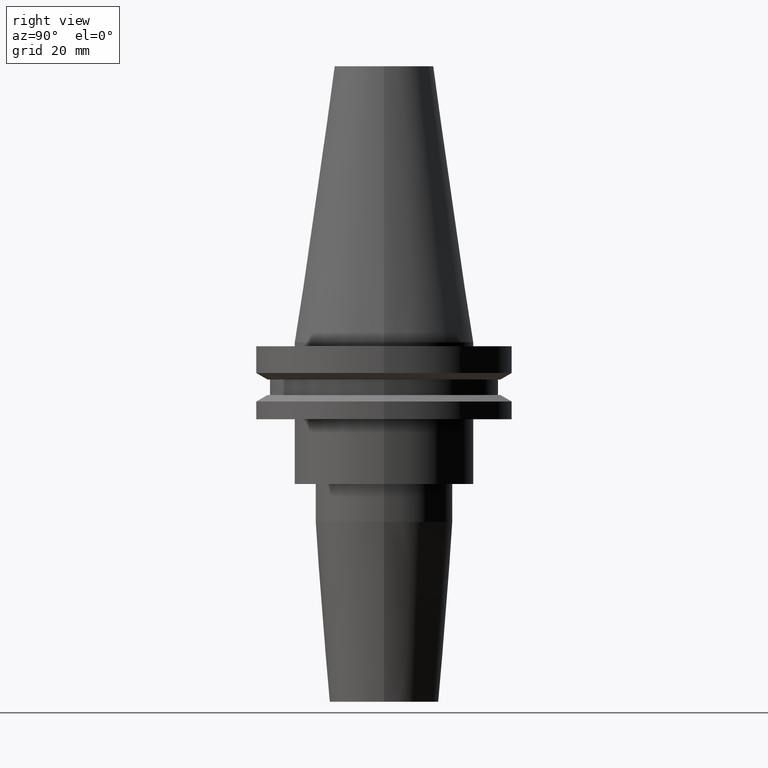
[diagram: clean part render]
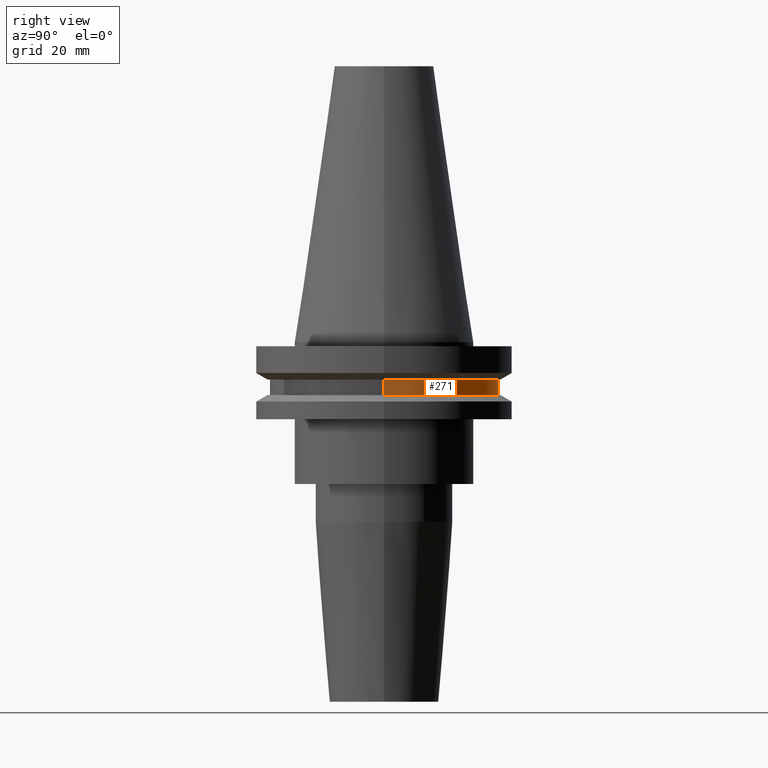
[diagram: same view with one face highlighted and labeled with its STEP entity id]
A machine part, right view. The second image highlights one B-rep face of the part: STEP entity #271.
In plain terms, the highlighted cylindrical surface (partial cylindrical patch) has radius 28.18 mm, axis along (-0, -0, 1).
Its self-contained STEP definition (entity closure, byte-faithful):
#3 = DIRECTION ( 'NONE',  ( -0.000000000000000000, -0.000000000000000000, 1.000000000000000000 ) ) ;
#50 = EDGE_CURVE ( 'NONE', #238, #223, #490, .T. ) ;
#81 = EDGE_CURVE ( 'NONE', #241, #223, #338, .T. ) ;
#115 = CARTESIAN_POINT ( 'NONE',  ( -28.17999999999999972, 3.451054679997241634E-15, -13.05499999999999794 ) ) ;
#127 = CARTESIAN_POINT ( 'NONE',  ( -28.17999999999999972, 3.451054679997241634E-15, -9.204999999999991189 ) ) ;
#137 = DIRECTION ( 'NONE',  ( 1.000000000000000000, 0.000000000000000000, 0.000000000000000000 ) ) ;
#146 = ORIENTED_EDGE ( 'NONE', *, *, #474, .F. ) ;
#156 = DIRECTION ( 'NONE',  ( -0.000000000000000000, -0.000000000000000000, 1.000000000000000000 ) ) ;
#157 = ORIENTED_EDGE ( 'NONE', *, *, #81, .F. ) ;
#167 = DIRECTION ( 'NONE',  ( -0.000000000000000000, -0.000000000000000000, 1.000000000000000000 ) ) ;
#216 = CYLINDRICAL_SURFACE ( 'NONE', #246, 28.17999999999999972 ) ;
#220 = DIRECTION ( 'NONE',  ( -0.000000000000000000, -0.000000000000000000, 1.000000000000000000 ) ) ;
#223 = VERTEX_POINT ( 'NONE', #127 ) ;
#229 = VECTOR ( 'NONE', #220, 1000.000000000000000 ) ;
#235 = DIRECTION ( 'NONE',  ( 1.000000000000000000, 0.000000000000000000, 0.000000000000000000 ) ) ;
#238 = VERTEX_POINT ( 'NONE', #115 ) ;
#241 = VERTEX_POINT ( 'NONE', #384 ) ;
#246 = AXIS2_PLACEMENT_3D ( 'NONE', #530, #536, #470 ) ;
#267 = CARTESIAN_POINT ( 'NONE',  ( 28.17999999999999972, 0.000000000000000000, -13.05499999999999794 ) ) ;
#271 = ADVANCED_FACE ( 'NONE', ( #408 ), #216, .T. ) ;
#283 = AXIS2_PLACEMENT_3D ( 'NONE', #691, #167, #235 ) ;
#296 = CIRCLE ( 'NONE', #782, 28.17999999999999972 ) ;
#338 = CIRCLE ( 'NONE', #283, 28.17999999999999972 ) ;
#339 = CARTESIAN_POINT ( 'NONE',  ( 0.000000000000000000, 0.000000000000000000, -13.05499999999999794 ) ) ;
#351 = ORIENTED_EDGE ( 'NONE', *, *, #50, .T. ) ;
#361 = EDGE_LOOP ( 'NONE', ( #599, #351, #157, #146 ) ) ;
#381 = VERTEX_POINT ( 'NONE', #267 ) ;
#384 = CARTESIAN_POINT ( 'NONE',  ( 28.17999999999999972, 0.000000000000000000, -9.204999999999991189 ) ) ;
#408 = FACE_OUTER_BOUND ( 'NONE', #361, .T. ) ;
#425 = LINE ( 'NONE', #557, #229 ) ;
#470 = DIRECTION ( 'NONE',  ( 1.000000000000000000, 0.000000000000000000, 0.000000000000000000 ) ) ;
#474 = EDGE_CURVE ( 'NONE', #381, #241, #425, .T. ) ;
#490 = LINE ( 'NONE', #749, #628 ) ;
#530 = CARTESIAN_POINT ( 'NONE',  ( 0.000000000000000000, 0.000000000000000000, 68.25000000000000000 ) ) ;
#536 = DIRECTION ( 'NONE',  ( -0.000000000000000000, -0.000000000000000000, 1.000000000000000000 ) ) ;
#557 = CARTESIAN_POINT ( 'NONE',  ( 28.17999999999999972, 0.000000000000000000, 68.25000000000000000 ) ) ;
#599 = ORIENTED_EDGE ( 'NONE', *, *, #720, .T. ) ;
#628 = VECTOR ( 'NONE', #156, 1000.000000000000000 ) ;
#691 = CARTESIAN_POINT ( 'NONE',  ( 0.000000000000000000, 0.000000000000000000, -9.204999999999991189 ) ) ;
#720 = EDGE_CURVE ( 'NONE', #381, #238, #296, .T. ) ;
#749 = CARTESIAN_POINT ( 'NONE',  ( -28.17999999999999972, 3.451054679997241634E-15, 68.25000000000000000 ) ) ;
#782 = AXIS2_PLACEMENT_3D ( 'NONE', #339, #3, #137 ) ;